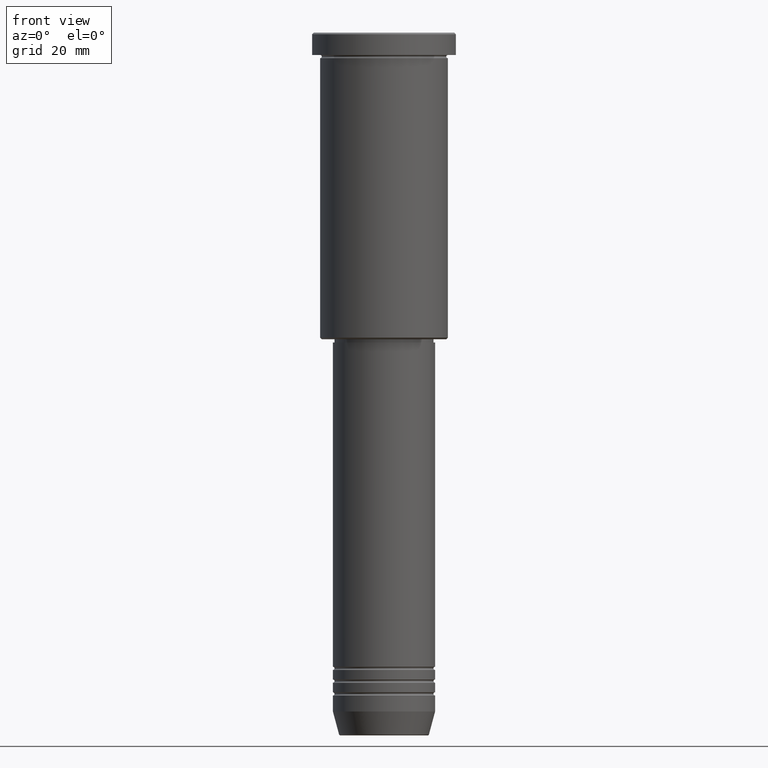
[diagram: clean part render]
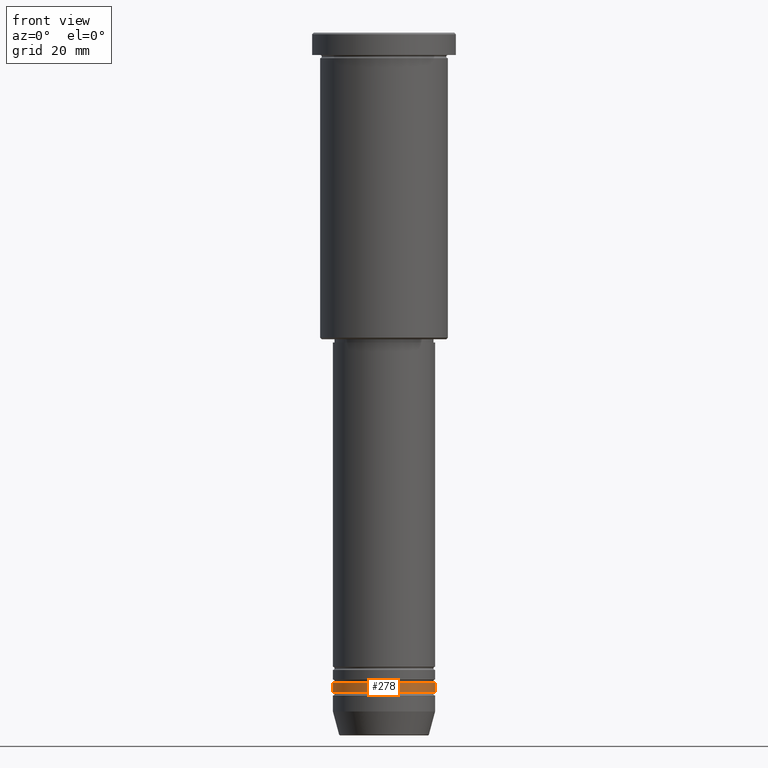
[diagram: same view with one face highlighted and labeled with its STEP entity id]
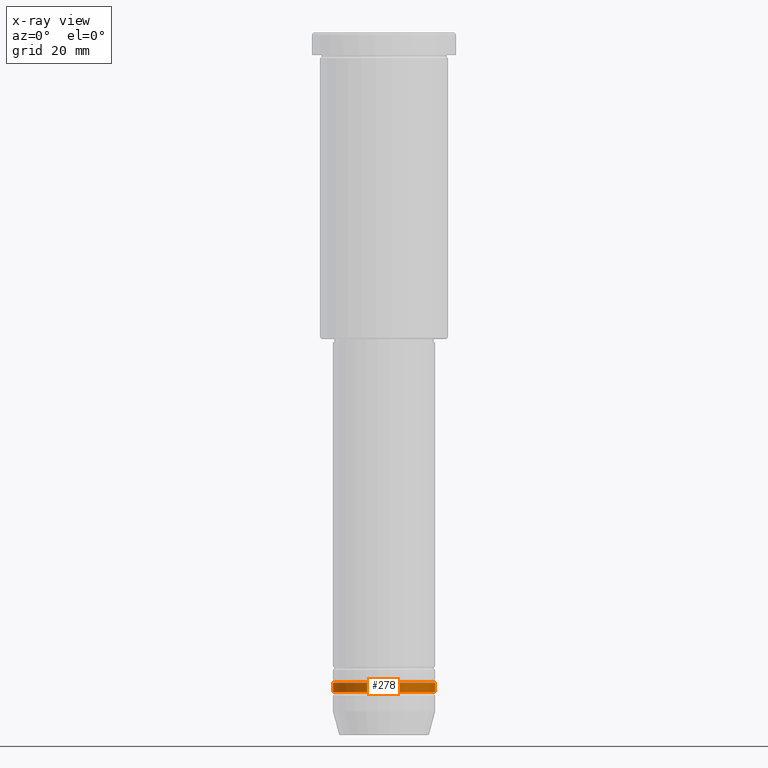
[diagram: x-ray of the same camera — body ghosted, the highlighted face saturated]
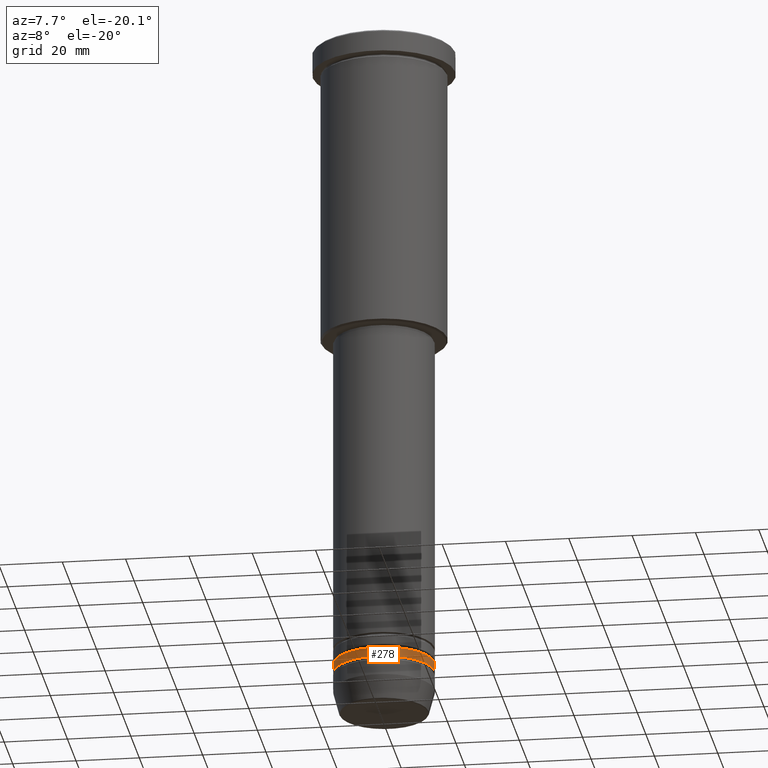
[diagram: same view with one face highlighted and labeled with its STEP entity id]
A machine part, front view. The second image highlights one B-rep face of the part: STEP entity #278.
The next image is the same camera in x-ray: the body ghosted, the highlighted face saturated — about 0% of this face is hidden behind the body in this view.
A second angle (auxiliary view) of the same face is appended — the face is thin or edge-on in the first view.
In plain terms, the highlighted cylindrical surface (partial cylindrical patch) has radius 16 mm, axis along (-0, -0, 1).
Its self-contained STEP definition (entity closure, byte-faithful):
#9 = AXIS2_PLACEMENT_3D ( 'NONE', #285, #470, #1012 ) ;
#27 = CARTESIAN_POINT ( 'NONE',  ( 16.00000000000000000, 0.000000000000000000, -203.5000000000000000 ) ) ;
#30 = CIRCLE ( 'NONE', #9, 16.00000000000000000 ) ;
#89 = FACE_OUTER_BOUND ( 'NONE', #741, .T. ) ;
#166 = CARTESIAN_POINT ( 'NONE',  ( -16.00000000000000000, 1.959434878635765131E-15, -203.5000000000000000 ) ) ;
#265 = VECTOR ( 'NONE', #345, 1000.000000000000000 ) ;
#267 = VERTEX_POINT ( 'NONE', #455 ) ;
#278 = ADVANCED_FACE ( 'NONE', ( #89 ), #819, .T. ) ;
#281 = ORIENTED_EDGE ( 'NONE', *, *, #746, .T. ) ;
#285 = CARTESIAN_POINT ( 'NONE',  ( 0.000000000000000000, 0.000000000000000000, -206.4999999999999716 ) ) ;
#304 = CARTESIAN_POINT ( 'NONE',  ( -16.00000000000000000, 1.959434878635765131E-15, -206.4999999999999716 ) ) ;
#344 = ORIENTED_EDGE ( 'NONE', *, *, #995, .F. ) ;
#345 = DIRECTION ( 'NONE',  ( -0.000000000000000000, -0.000000000000000000, 1.000000000000000000 ) ) ;
#361 = CARTESIAN_POINT ( 'NONE',  ( 0.000000000000000000, 0.000000000000000000, 0.000000000000000000 ) ) ;
#370 = DIRECTION ( 'NONE',  ( 1.000000000000000000, 0.000000000000000000, 0.000000000000000000 ) ) ;
#455 = CARTESIAN_POINT ( 'NONE',  ( 16.00000000000000000, 0.000000000000000000, -206.4999999999999716 ) ) ;
#470 = DIRECTION ( 'NONE',  ( -0.000000000000000000, -0.000000000000000000, 1.000000000000000000 ) ) ;
#570 = LINE ( 'NONE', #890, #625 ) ;
#577 = ORIENTED_EDGE ( 'NONE', *, *, #768, .T. ) ;
#625 = VECTOR ( 'NONE', #843, 1000.000000000000000 ) ;
#648 = DIRECTION ( 'NONE',  ( -0.000000000000000000, -0.000000000000000000, 1.000000000000000000 ) ) ;
#737 = AXIS2_PLACEMENT_3D ( 'NONE', #1082, #816, #370 ) ;
#741 = EDGE_LOOP ( 'NONE', ( #344, #281, #577, #1056 ) ) ;
#746 = EDGE_CURVE ( 'NONE', #885, #267, #30, .T. ) ;
#754 = CIRCLE ( 'NONE', #737, 16.00000000000000000 ) ;
#766 = VERTEX_POINT ( 'NONE', #166 ) ;
#768 = EDGE_CURVE ( 'NONE', #267, #855, #570, .T. ) ;
#816 = DIRECTION ( 'NONE',  ( -0.000000000000000000, -0.000000000000000000, 1.000000000000000000 ) ) ;
#819 = CYLINDRICAL_SURFACE ( 'NONE', #1006, 16.00000000000000000 ) ;
#843 = DIRECTION ( 'NONE',  ( -0.000000000000000000, -0.000000000000000000, 1.000000000000000000 ) ) ;
#855 = VERTEX_POINT ( 'NONE', #27 ) ;
#885 = VERTEX_POINT ( 'NONE', #304 ) ;
#890 = CARTESIAN_POINT ( 'NONE',  ( 16.00000000000000000, 0.000000000000000000, 0.000000000000000000 ) ) ;
#892 = DIRECTION ( 'NONE',  ( 1.000000000000000000, 0.000000000000000000, 0.000000000000000000 ) ) ;
#995 = EDGE_CURVE ( 'NONE', #885, #766, #1155, .T. ) ;
#1006 = AXIS2_PLACEMENT_3D ( 'NONE', #361, #648, #892 ) ;
#1012 = DIRECTION ( 'NONE',  ( 1.000000000000000000, 0.000000000000000000, 0.000000000000000000 ) ) ;
#1056 = ORIENTED_EDGE ( 'NONE', *, *, #1127, .F. ) ;
#1057 = CARTESIAN_POINT ( 'NONE',  ( -16.00000000000000000, 1.959434878635765131E-15, 0.000000000000000000 ) ) ;
#1082 = CARTESIAN_POINT ( 'NONE',  ( 0.000000000000000000, 0.000000000000000000, -203.5000000000000000 ) ) ;
#1127 = EDGE_CURVE ( 'NONE', #766, #855, #754, .T. ) ;
#1155 = LINE ( 'NONE', #1057, #265 ) ;